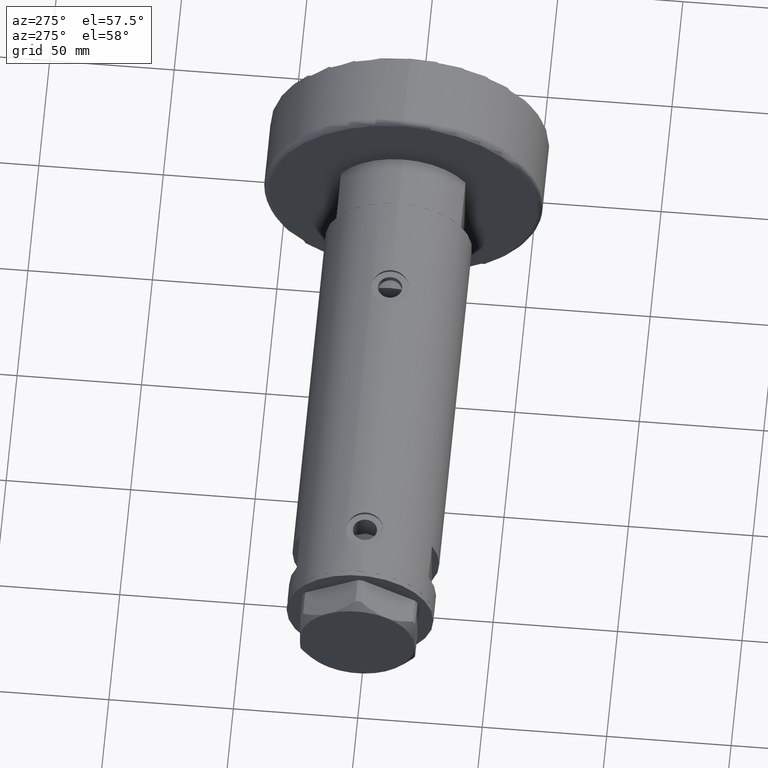
[diagram: clean part render]
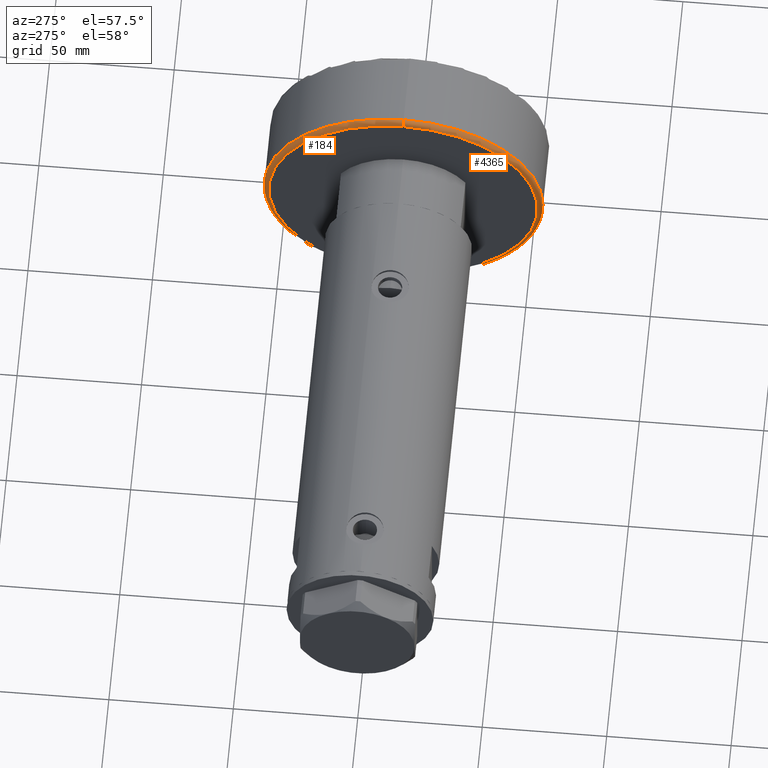
[diagram: same view with one multi-face feature highlighted, each face labeled with its STEP entity id]
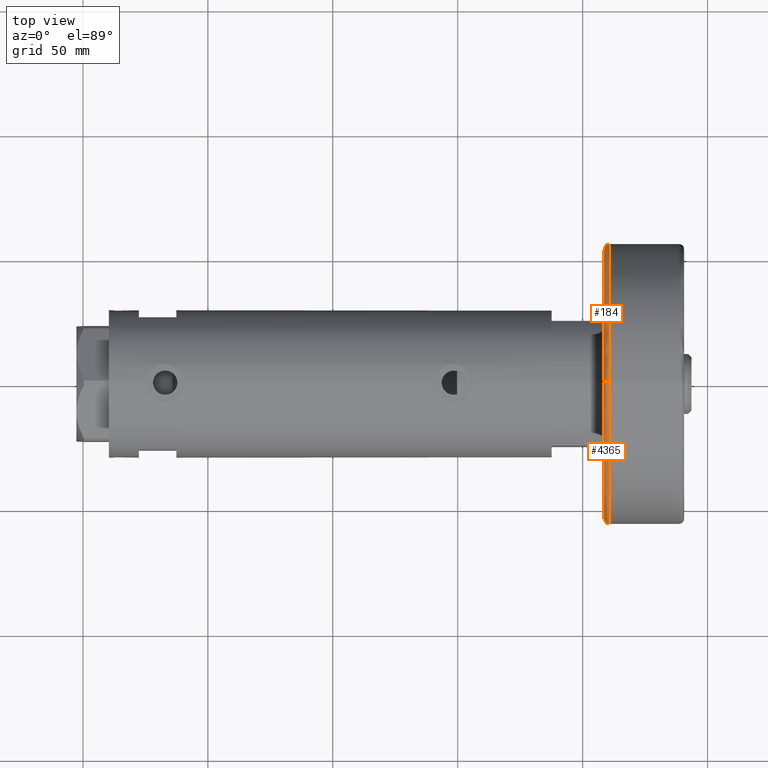
[diagram: same view with one multi-face feature highlighted, each face labeled with its STEP entity id]
A machine part, auxiliary view. The highlighted faces form ONE feature: a constant-radius fillet chain: 2 tangent blend faces with common blend radius 2 mm. The faces share edges in the B-rep.
A second angle (top view) of the same feature is appended — it is thin or edge-on in the first view.
Their STEP definitions:
[1] entity #4365 (Torus):
#212 = ORIENTED_EDGE ( 'NONE', *, *, #895, .T. ) ;
#291 = CIRCLE ( 'NONE', #2093, 56.00000000000000000 ) ;
#307 = CARTESIAN_POINT ( 'NONE',  ( 0.000000000000000000, 0.000000000000000000, 2.000000000000001776 ) ) ;
#339 = CARTESIAN_POINT ( 'NONE',  ( 0.000000000000000000, 0.000000000000000000, 2.000000000000001776 ) ) ;
#340 = VERTEX_POINT ( 'NONE', #3330 ) ;
#384 = CARTESIAN_POINT ( 'NONE',  ( -54.00000000000000000, 6.613092715395707467E-15, 2.000000000000001776 ) ) ;
#555 = TOROIDAL_SURFACE ( 'NONE', #1192, 54.00000000000000000, 2.000000000000000000 ) ;
#581 = DIRECTION ( 'NONE',  ( 1.224646799147353207E-16, 1.000000000000000000, -0.000000000000000000 ) ) ;
#670 = ORIENTED_EDGE ( 'NONE', *, *, #789, .F. ) ;
#789 = EDGE_CURVE ( 'NONE', #1910, #2308, #3802, .T. ) ;
#822 = CARTESIAN_POINT ( 'NONE',  ( 54.00000000000000000, 0.000000000000000000, 0.000000000000000000 ) ) ;
#868 = DIRECTION ( 'NONE',  ( 0.000000000000000000, 0.000000000000000000, -1.000000000000000000 ) ) ;
#895 = EDGE_CURVE ( 'NONE', #1910, #4344, #4505, .T. ) ;
#1118 = FACE_OUTER_BOUND ( 'NONE', #1468, .T. ) ;
#1141 = DIRECTION ( 'NONE',  ( 1.000000000000000000, 0.000000000000000000, 0.000000000000000000 ) ) ;
#1192 = AXIS2_PLACEMENT_3D ( 'NONE', #339, #1835, #1141 ) ;
#1278 = CARTESIAN_POINT ( 'NONE',  ( -54.00000000000000000, 6.735557395310443404E-15, 0.000000000000000000 ) ) ;
#1352 = ORIENTED_EDGE ( 'NONE', *, *, #2217, .F. ) ;
#1463 = ORIENTED_EDGE ( 'NONE', *, *, #2008, .F. ) ;
#1468 = EDGE_LOOP ( 'NONE', ( #1352, #670, #212, #1463 ) ) ;
#1486 = DIRECTION ( 'NONE',  ( 1.000000000000000000, 0.000000000000000000, 0.000000000000000000 ) ) ;
#1561 = DIRECTION ( 'NONE',  ( 1.000000000000000000, 0.000000000000000000, 0.000000000000000000 ) ) ;
#1695 = AXIS2_PLACEMENT_3D ( 'NONE', #2379, #3477, #1561 ) ;
#1835 = DIRECTION ( 'NONE',  ( 0.000000000000000000, 0.000000000000000000, 1.000000000000000000 ) ) ;
#1910 = VERTEX_POINT ( 'NONE', #822 ) ;
#2008 = EDGE_CURVE ( 'NONE', #340, #4344, #291, .T. ) ;
#2093 = AXIS2_PLACEMENT_3D ( 'NONE', #307, #2566, #1486 ) ;
#2217 = EDGE_CURVE ( 'NONE', #2308, #340, #2249, .T. ) ;
#2249 = CIRCLE ( 'NONE', #4513, 2.000000000000001776 ) ;
#2308 = VERTEX_POINT ( 'NONE', #1278 ) ;
#2379 = CARTESIAN_POINT ( 'NONE',  ( 0.000000000000000000, 0.000000000000000000, 0.000000000000000000 ) ) ;
#2566 = DIRECTION ( 'NONE',  ( 0.000000000000000000, 0.000000000000000000, 1.000000000000000000 ) ) ;
#3330 = CARTESIAN_POINT ( 'NONE',  ( -56.00000000000000000, 0.000000000000000000, 2.000000000000001776 ) ) ;
#3400 = CARTESIAN_POINT ( 'NONE',  ( 54.00000000000000000, 0.000000000000000000, 2.000000000000001776 ) ) ;
#3477 = DIRECTION ( 'NONE',  ( -0.000000000000000000, -0.000000000000000000, -1.000000000000000000 ) ) ;
#3706 = CARTESIAN_POINT ( 'NONE',  ( 56.00000000000000000, 6.858022075225178552E-15, 2.000000000000001776 ) ) ;
#3802 = CIRCLE ( 'NONE', #1695, 54.00000000000000000 ) ;
#4027 = AXIS2_PLACEMENT_3D ( 'NONE', #3400, #4199, #868 ) ;
#4199 = DIRECTION ( 'NONE',  ( 0.000000000000000000, -1.000000000000000000, 0.000000000000000000 ) ) ;
#4344 = VERTEX_POINT ( 'NONE', #3706 ) ;
#4365 = ADVANCED_FACE ( 'NONE', ( #1118 ), #555, .T. ) ;
#4505 = CIRCLE ( 'NONE', #4027, 2.000000000000000000 ) ;
#4513 = AXIS2_PLACEMENT_3D ( 'NONE', #384, #581, #4649 ) ;
#4649 = DIRECTION ( 'NONE',  ( -1.000000000000000000, 1.224646799147353454E-16, 0.000000000000000000 ) ) ;
[2] entity #184 (Torus):
#49 = AXIS2_PLACEMENT_3D ( 'NONE', #637, #3237, #2927 ) ;
#146 = DIRECTION ( 'NONE',  ( -0.000000000000000000, -0.000000000000000000, -1.000000000000000000 ) ) ;
#184 = ADVANCED_FACE ( 'NONE', ( #2125 ), #3559, .T. ) ;
#340 = VERTEX_POINT ( 'NONE', #3330 ) ;
#384 = CARTESIAN_POINT ( 'NONE',  ( -54.00000000000000000, 6.613092715395707467E-15, 2.000000000000001776 ) ) ;
#531 = AXIS2_PLACEMENT_3D ( 'NONE', #4366, #3552, #2830 ) ;
#581 = DIRECTION ( 'NONE',  ( 1.224646799147353207E-16, 1.000000000000000000, -0.000000000000000000 ) ) ;
#637 = CARTESIAN_POINT ( 'NONE',  ( 0.000000000000000000, 0.000000000000000000, 2.000000000000001776 ) ) ;
#822 = CARTESIAN_POINT ( 'NONE',  ( 54.00000000000000000, 0.000000000000000000, 0.000000000000000000 ) ) ;
#868 = DIRECTION ( 'NONE',  ( 0.000000000000000000, 0.000000000000000000, -1.000000000000000000 ) ) ;
#895 = EDGE_CURVE ( 'NONE', #1910, #4344, #4505, .T. ) ;
#947 = CIRCLE ( 'NONE', #49, 56.00000000000000000 ) ;
#1267 = ORIENTED_EDGE ( 'NONE', *, *, #2217, .T. ) ;
#1278 = CARTESIAN_POINT ( 'NONE',  ( -54.00000000000000000, 6.735557395310443404E-15, 0.000000000000000000 ) ) ;
#1523 = ORIENTED_EDGE ( 'NONE', *, *, #895, .F. ) ;
#1910 = VERTEX_POINT ( 'NONE', #822 ) ;
#1929 = EDGE_LOOP ( 'NONE', ( #3836, #1267, #2622, #1523 ) ) ;
#2016 = CARTESIAN_POINT ( 'NONE',  ( 0.000000000000000000, 0.000000000000000000, 0.000000000000000000 ) ) ;
#2044 = EDGE_CURVE ( 'NONE', #4344, #340, #947, .T. ) ;
#2071 = EDGE_CURVE ( 'NONE', #2308, #1910, #3035, .T. ) ;
#2125 = FACE_OUTER_BOUND ( 'NONE', #1929, .T. ) ;
#2217 = EDGE_CURVE ( 'NONE', #2308, #340, #2249, .T. ) ;
#2249 = CIRCLE ( 'NONE', #4513, 2.000000000000001776 ) ;
#2308 = VERTEX_POINT ( 'NONE', #1278 ) ;
#2622 = ORIENTED_EDGE ( 'NONE', *, *, #2044, .F. ) ;
#2773 = DIRECTION ( 'NONE',  ( 1.000000000000000000, 0.000000000000000000, 0.000000000000000000 ) ) ;
#2830 = DIRECTION ( 'NONE',  ( 1.000000000000000000, 0.000000000000000000, 0.000000000000000000 ) ) ;
#2868 = AXIS2_PLACEMENT_3D ( 'NONE', #2016, #146, #2773 ) ;
#2927 = DIRECTION ( 'NONE',  ( 1.000000000000000000, 0.000000000000000000, 0.000000000000000000 ) ) ;
#3035 = CIRCLE ( 'NONE', #2868, 54.00000000000000000 ) ;
#3237 = DIRECTION ( 'NONE',  ( 0.000000000000000000, 0.000000000000000000, 1.000000000000000000 ) ) ;
#3330 = CARTESIAN_POINT ( 'NONE',  ( -56.00000000000000000, 0.000000000000000000, 2.000000000000001776 ) ) ;
#3400 = CARTESIAN_POINT ( 'NONE',  ( 54.00000000000000000, 0.000000000000000000, 2.000000000000001776 ) ) ;
#3552 = DIRECTION ( 'NONE',  ( 0.000000000000000000, 0.000000000000000000, 1.000000000000000000 ) ) ;
#3559 = TOROIDAL_SURFACE ( 'NONE', #531, 54.00000000000000000, 2.000000000000000000 ) ;
#3706 = CARTESIAN_POINT ( 'NONE',  ( 56.00000000000000000, 6.858022075225178552E-15, 2.000000000000001776 ) ) ;
#3836 = ORIENTED_EDGE ( 'NONE', *, *, #2071, .F. ) ;
#4027 = AXIS2_PLACEMENT_3D ( 'NONE', #3400, #4199, #868 ) ;
#4199 = DIRECTION ( 'NONE',  ( 0.000000000000000000, -1.000000000000000000, 0.000000000000000000 ) ) ;
#4344 = VERTEX_POINT ( 'NONE', #3706 ) ;
#4366 = CARTESIAN_POINT ( 'NONE',  ( 0.000000000000000000, 0.000000000000000000, 2.000000000000001776 ) ) ;
#4505 = CIRCLE ( 'NONE', #4027, 2.000000000000000000 ) ;
#4513 = AXIS2_PLACEMENT_3D ( 'NONE', #384, #581, #4649 ) ;
#4649 = DIRECTION ( 'NONE',  ( -1.000000000000000000, 1.224646799147353454E-16, 0.000000000000000000 ) ) ;